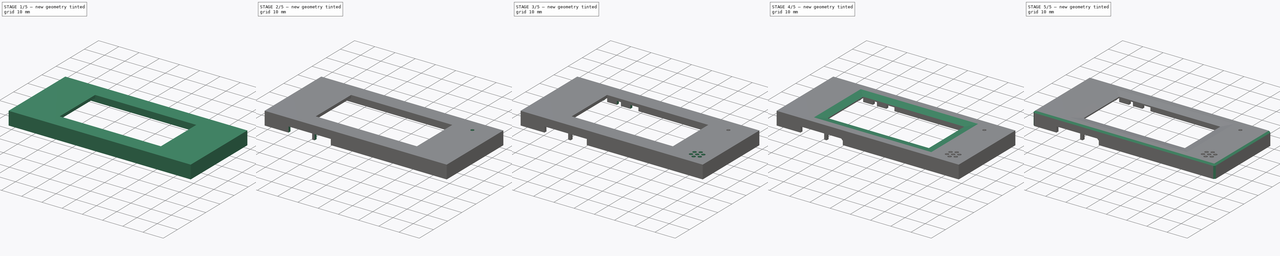
[diagram: build sequence overview — one tinted view per stage of 5, left to right]
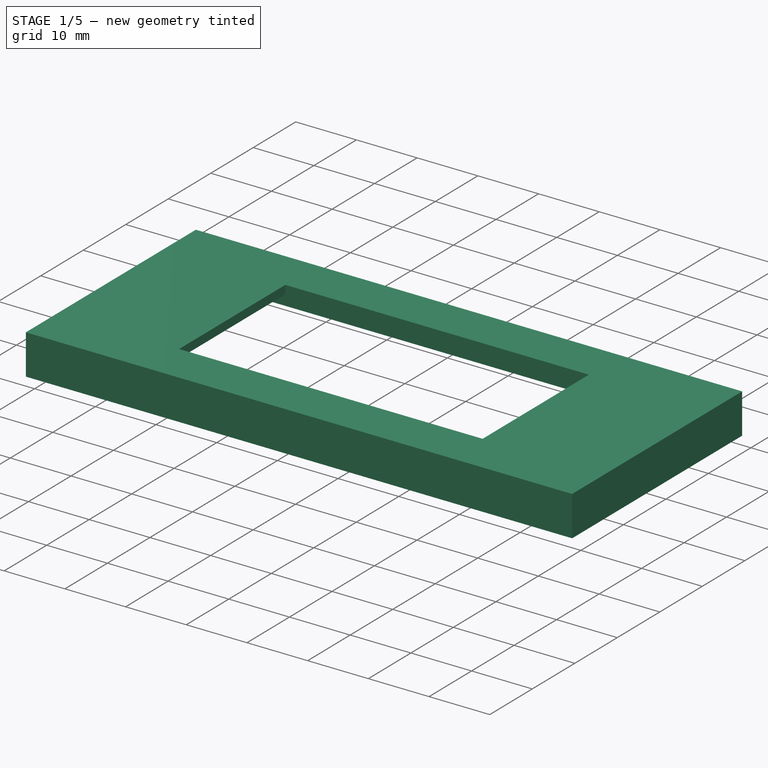
[diagram: stage 1 of 5 — iso view after this stage's code; geometry added in this stage tinted green]
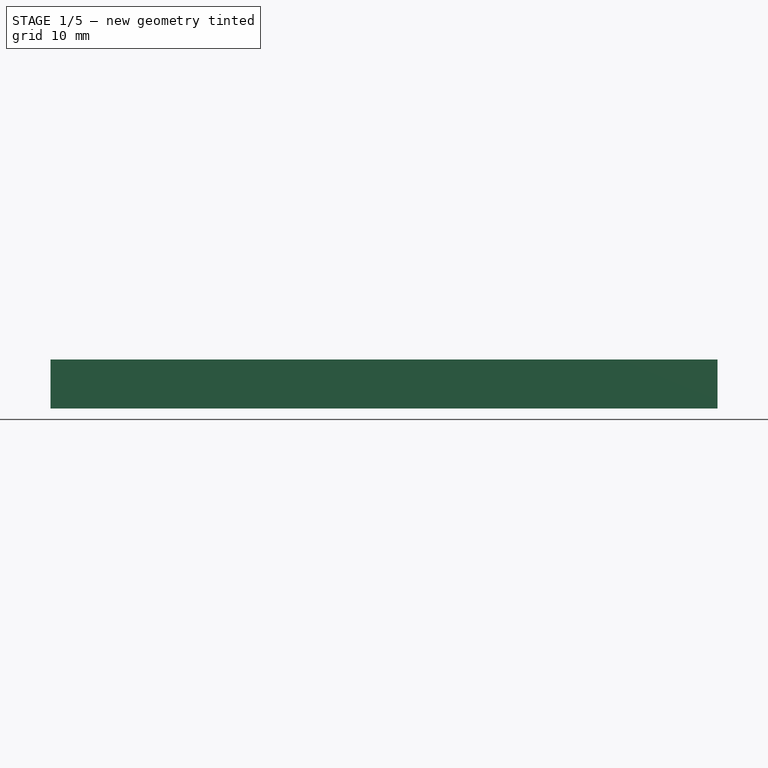
[diagram: stage 1 of 5 — front view after this stage's code; geometry added in this stage tinted green]
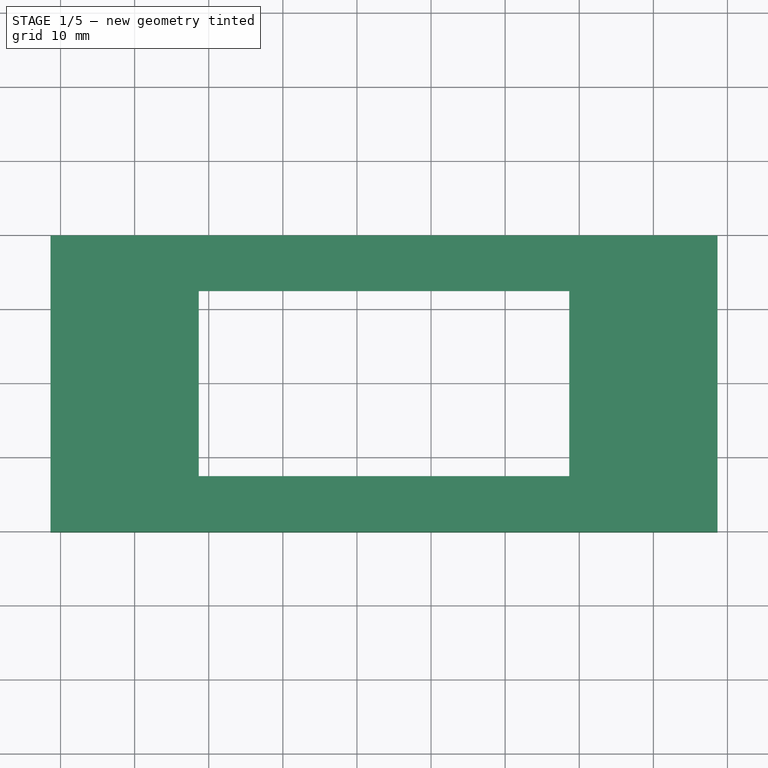
[diagram: stage 1 of 5 — top view after this stage's code; geometry added in this stage tinted green]
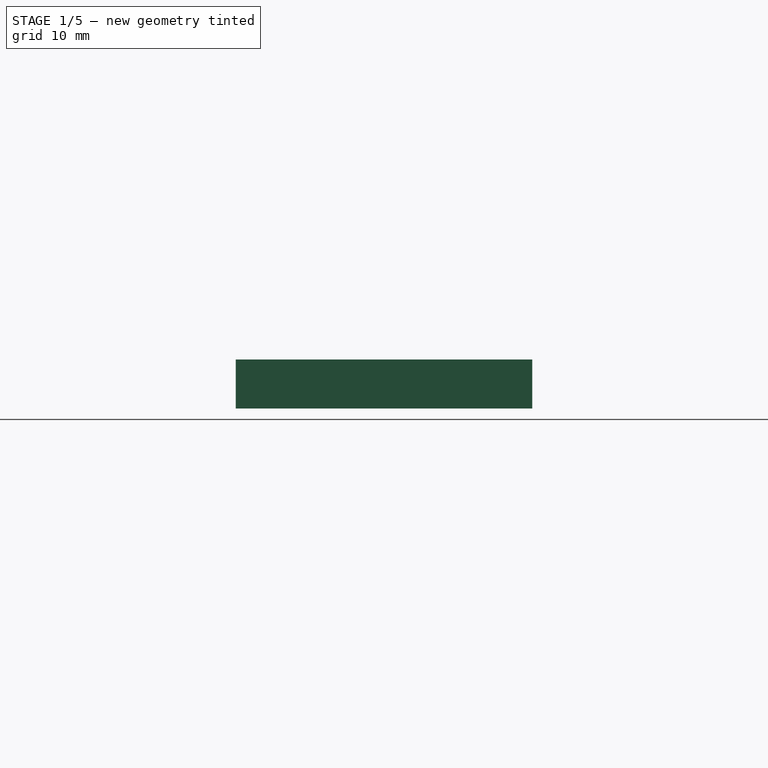
[diagram: stage 1 of 5 — right view after this stage's code; geometry added in this stage tinted green]
FCSTD DOCUMENT  (FreeCAD 0.21R33771 (Git))
Label: EnclosureBase
License: Creative Commons Attribution-NonCommercial 4.0
LicenseURL: https://creativecommons.org/licenses/by-nc/4.0/
objects: Sketcher::SketchObject×11, PartDesign::Pocket×8, PartDesign::Chamfer×4, PartDesign::Pad×3, PartDesign::SubShapeBinder×2, App::Link×1, Spreadsheet::Sheet×1, PartDesign::Fillet×1, PartDesign::Body×1
note: 46 computed .brp shape members not serialized (recipe doc carries the construction recipe); baked Part::Feature solids carry a one-line shape summary decoded from their .brp
EXTERNAL_REF file=Mainboard.FCStd obj=Body

FEATURE [App::Link] Link
  LinkPlacement = pos=(0,0,2.75) rot=(0,0,1;0rad)
  LinkedObject = -> <external Mainboard.FCStd>#Body
  Placement = pos=(0,0,2.75) rot=(0,0,1;0rad)
FEATURE [PartDesign::SubShapeBinder] Binder
  BindCopyOnChange = 0
  BindMode = 0
  ClaimChildren = false
  Context = -> Body [Binder.]
  Fuse = false
  MakeFace = true
  OffsetFill = false
  OffsetIntersection = false
  OffsetJoinType = 0
  OffsetOpenResult = false
  PartialLoad = false
  Relative = true
  Support = -> [Link[Pad013.Face5]]
  _Version = 2
FEATURE [Sketcher::SketchObject] Sketch  label="ShellOutline"
  ExternalGeometry = -> [Binder]
  FullyConstrained = true
  MapMode = 5
  Support = -> [XY_Plane]
  expr: Constraints[14] = <<Dims>>.CaseTotalW
  expr: Constraints[15] = <<Dims>>.CaseTotalH
  expr: Constraints[32] = <<Dims>>.ScreenVisibleWidth
  expr: Constraints[33] = <<Dims>>.ScreenVisibleHeight
  sketch-geometry (18):
    g0: LineSegment StartX=-41.35 StartY=19.875 StartZ=0 EndX=48.65 EndY=19.875 EndZ=0
    g1: LineSegment StartX=48.65 StartY=19.875 StartZ=0 EndX=48.65 EndY=-20.125 EndZ=0
    g2: LineSegment StartX=48.65 StartY=-20.125 StartZ=0 EndX=-41.35 EndY=-20.125 EndZ=0
    g3: LineSegment StartX=-41.35 StartY=-20.125 StartZ=0 EndX=-41.35 EndY=19.875 EndZ=0
    g4: LineSegment StartX=-28.35 StartY=19.875 StartZ=0 EndX=-28.35 EndY=14.375 EndZ=0
    g5: LineSegment StartX=-28.35 StartY=-14.625 StartZ=0 EndX=-28.35 EndY=-20.125 EndZ=0
    g6: LineSegment StartX=-28.35 StartY=14.375 StartZ=0 EndX=30.65 EndY=14.375 EndZ=0
    g7: LineSegment StartX=30.65 StartY=14.375 StartZ=0 EndX=30.65 EndY=-14.625 EndZ=0
    g8: LineSegment StartX=30.65 StartY=-14.625 StartZ=0 EndX=-28.35 EndY=-14.625 EndZ=0
    g9: LineSegment StartX=-28.35 StartY=-14.625 StartZ=0 EndX=-28.35 EndY=14.375 EndZ=0
    g10: LineSegment StartX=28.65 StartY=12.375 StartZ=0 EndX=-21.35 EndY=12.375 EndZ=0
    g11: LineSegment StartX=-21.35 StartY=12.375 StartZ=0 EndX=-21.35 EndY=-12.625 EndZ=0
    g12: LineSegment StartX=-21.35 StartY=-12.625 StartZ=0 EndX=28.65 EndY=-12.625 EndZ=0
    g13: LineSegment StartX=28.65 StartY=-12.625 StartZ=0 EndX=28.65 EndY=12.375 EndZ=0
    g14: LineSegment StartX=-21.35 StartY=12.375 StartZ=0 EndX=-21.35 EndY=14.375 EndZ=0
    g15: LineSegment StartX=-21.35 StartY=-12.625 StartZ=0 EndX=-21.35 EndY=-14.625 EndZ=0
    g16: LineSegment StartX=-21.35 StartY=-12.625 StartZ=0 EndX=-41.35 EndY=-12.625 EndZ=0
    g17: LineSegment StartX=28.65 StartY=-12.625 StartZ=0 EndX=48.65 EndY=-12.625 EndZ=0
  constraints (51):
    c: Coincident(g0,g1)
    c: Coincident(g1,g2)
    c: Coincident(g2,g3)
    c: Coincident(g3,g0)
    c: Horizontal(g0)
    c: Horizontal(g2)
    c: Vertical(g1)
    c: Vertical(g3)
    c: PointOnObject(g4,g0)
    c: Coincident(g4,g-3)
    c: Vertical(g4)
    c: PointOnObject(g5,g2)
    c: Vertical(g5)
    c: Equal(g4,g5)
    c: DistanceX(g0,g0) = 90
    c: DistanceY(g3,g3) = 40
    c: Coincident(g6,g7)
    c: Coincident(g7,g8)
    c: Coincident(g8,g9)
    c: Coincident(g9,g6)
    c: Horizontal(g6)
    c: Vertical(g7)
    c: Coincident(g6,g4)
    c: Coincident(g10,g11)
    c: Coincident(g11,g12)
    c: Coincident(g12,g13)
    c: Coincident(g13,g10)
    c: Horizontal(g10)
    c: Horizontal(g12)
    c: Vertical(g11)
    c: Vertical(g13)
    c: DistanceX(g10,g6) = 2
    c: DistanceX(g10,g10) = 50
    c: DistanceY(g13,g13) = 25
    c: Coincident(g14,g10)
    c: PointOnObject(g14,g6)
    c: Vertical(g14)
    c: Coincident(g15,g11)
    c: PointOnObject(g15,g8)
    c: Vertical(g15)
    c: Equal(g15,g14)
    c: Coincident(g16,g11)
    c: PointOnObject(g16,g3)
    c: Horizontal(g16)
    c: Coincident(g17,g12)
    c: PointOnObject(g17,g1)
    c: Horizontal(g17)
    c: Equal(g17,g16)
    c: Coincident(g7,g-5)
    c: Coincident(g5,g8)
    c: Coincident(g5,g-4)
FEATURE [Spreadsheet::Sheet] Spreadsheet  label="Dims"
  cells = A1='Name; B1='Value; C1='Computed; A2='WallThk; B2(WallThk)=1.4; A3='MainboardPcbThk; B3(MainboardPcbThk)=1.2; A4='ScreenDepth; B4(ScreenDepth)=1.2; A5='ScreenVisibleWidth; B5(ScreenVisibleWidth)=50; A6='ScreenVisibleHeight; B6(ScreenVisibleHeight)=25; A7='CaseTotalW; B7(CaseTotalW)=90; A8='CaseTotalH; B8(CaseTotalH)=40; A9='SdCardDepth; B9(SdCardDepth)=2.8; A10='FrontShellDepth; B10(FrontShellDepth)==WallThk + ScreenDepth + MainboardPcbThk + SdCardDepth; C10='*; A11='BatDepth; B11(BatDepth)=5; A12='BadLength; B12(BadLength)=50; A13='BatWidth; B13(BatWidth)=34; A14='BuzzerW; B14(BuzzerW)=5.2; A15='BuzzerH; B15(BuzzerH)=5.3; A16='BuzzerD; B16(BuzzerD)=1.2; A17='BuzzerHoleDia; B17(BuzzerHoleDia)=1.2; A18='BuzzerAssemblyH; B18(BuzzerAssemblyH)=11; A19='BuzzerAssemblyW; B19(BuzzerAssemblyW)=13; A20='BuzzerAssemblyD; B20(BuzzerAssemblyD)=7.5
FEATURE [PartDesign::Pad] Pad  label="Shell"
  Direction = (0,0,1)
  Length = 6.6
  Length2 = 10
  Profile = -> Sketch
  ReferenceAxis = -> Sketch [N_Axis]
  Type = 0
  expr: Length = <<Dims>>.FrontShellDepth
FEATURE [Sketcher::SketchObject] Sketch001  label="InnerCut"
  ExternalGeometry = -> [Pad]
  FullyConstrained = true
  MapMode = 5
  Placement = pos=(0,0,0) rot=(1,0,0;3.14159rad)
  Support = -> [Pad]
  expr: Constraints[10] = <<Dims>>.WallThk
  expr: Constraints[11] = <<Dims>>.WallThk
  expr: Constraints[17] = <<Dims>>.WallThk
  expr: Constraints[18] = <<Dims>>.BuzzerAssemblyH
  expr: Constraints[23] = <<Dims>>.BuzzerAssemblyW
  expr: Constraints[8] = <<Dims>>.WallThk
  expr: Constraints[9] = <<Dims>>.WallThk
  sketch-geometry (30):
    g0: LineSegment StartX=-39.95 StartY=18.725 StartZ=0 EndX=47.25 EndY=18.725 EndZ=0
    g1: LineSegment StartX=47.25 StartY=18.725 StartZ=0 EndX=47.25 EndY=-6.075 EndZ=0
    g2: LineSegment StartX=47.25 StartY=-18.475 StartZ=0 EndX=-39.95 EndY=-18.475 EndZ=0
    g3: LineSegment StartX=-39.95 StartY=-18.475 StartZ=0 EndX=-39.95 EndY=18.725 EndZ=0
    g4: LineSegment StartX=47.25 StartY=-6.075 StartZ=0 EndX=34.25 EndY=-6.075 EndZ=0
    g5: LineSegment StartX=34.25 StartY=-6.075 StartZ=0 EndX=34.25 EndY=-7.475 EndZ=0
    g6: LineSegment StartX=34.25 StartY=-7.475 StartZ=0 EndX=47.25 EndY=-7.475 EndZ=0
    g7: LineSegment StartX=47.25 StartY=-7.475 StartZ=0 EndX=47.25 EndY=-18.475 EndZ=0
    g8: LineSegment StartX=-39.95 StartY=18.725 StartZ=0 EndX=-36.85 EndY=18.725 EndZ=0
    g9: LineSegment StartX=-36.85 StartY=18.725 StartZ=0 EndX=-36.85 EndY=15.625 EndZ=0
    g10: LineSegment StartX=-36.85 StartY=15.625 StartZ=0 EndX=-39.95 EndY=15.625 EndZ=0
    g11: LineSegment StartX=-39.95 StartY=15.625 StartZ=0 EndX=-39.95 EndY=18.725 EndZ=0
    g12: LineSegment StartX=-39.95 StartY=-18.475 StartZ=0 EndX=-36.85 EndY=-18.475 EndZ=0
    g13: LineSegment StartX=-36.85 StartY=-18.475 StartZ=0 EndX=-36.85 EndY=-15.375 EndZ=0
    g14: LineSegment StartX=-36.85 StartY=-15.375 StartZ=0 EndX=-39.95 EndY=-15.375 EndZ=0
    g15: LineSegment StartX=-39.95 StartY=-15.375 StartZ=0 EndX=-39.95 EndY=-18.475 EndZ=0
    g16: LineSegment StartX=47.25 StartY=-18.475 StartZ=0 EndX=44.15 EndY=-18.475 EndZ=0
    g17: LineSegment StartX=44.15 StartY=-18.475 StartZ=0 EndX=44.15 EndY=-15.375 EndZ=0
    g18: LineSegment StartX=44.15 StartY=-15.375 StartZ=0 EndX=47.25 EndY=-15.375 EndZ=0
    g19: LineSegment StartX=47.25 StartY=-15.375 StartZ=0 EndX=47.25 EndY=-18.475 EndZ=0
    g20: LineSegment StartX=47.25 StartY=18.725 StartZ=0 EndX=44.15 EndY=18.725 EndZ=0
    g21: LineSegment StartX=44.15 StartY=18.725 StartZ=0 EndX=44.15 EndY=15.625 EndZ=0
    g22: LineSegment StartX=44.15 StartY=15.625 StartZ=0 EndX=47.25 EndY=15.625 EndZ=0
    g23: LineSegment StartX=47.25 StartY=15.625 StartZ=0 EndX=47.25 EndY=18.725 EndZ=0
    g24: LineSegment StartX=-39.95 StartY=15.625 StartZ=0 EndX=-39.95 EndY=-15.375 EndZ=0
    g25: LineSegment StartX=47.25 StartY=15.625 StartZ=0 EndX=47.25 EndY=-6.075 EndZ=0
    g26: LineSegment StartX=47.25 StartY=-7.475 StartZ=0 EndX=47.25 EndY=-15.375 EndZ=0
    g27: LineSegment StartX=-36.85 StartY=18.725 StartZ=0 EndX=44.15 EndY=18.725 EndZ=0
    g28: LineSegment StartX=-36.85 StartY=-18.475 StartZ=0 EndX=44.15 EndY=-18.475 EndZ=0
    g29: LineSegment StartX=-41.35 StartY=-19.875 StartZ=0 EndX=-36.85 EndY=-19.875 EndZ=0
  constraints (81):
    c: Coincident(g0,g1)
    c: Coincident(g7,g2)
    c: Coincident(g2,g3)
    c: Coincident(g3,g0)
    c: Horizontal(g0)
    c: Horizontal(g2)
    c: Vertical(g1)
    c: Vertical(g3)
    c: DistanceX(g-3,g0) = 1.4
    c: DistanceX(g0,g-6) = 1.4
    c: DistanceY(g0,g-6) = 1.4
    c: DistanceY(g-5,g7) = 1.4
    c: Coincident(g4,g5)
    c: Coincident(g5,g6)
    c: Horizontal(g4)
    c: Horizontal(g6)
    c: Vertical(g5)
    c: DistanceY(g5,g5) = 1.4
    c: DistanceY(g7,g7) = 11
    c: Coincident(g1,g4)
    c: Coincident(g6,g7)
    c: Vertical(g7)
    c: Equal(g0,g2)
    c: DistanceX(g4,g4) = 13
    c: Coincident(g8,g9)
    c: Coincident(g9,g10)
    c: Coincident(g10,g11)
    c: Coincident(g11,g8)
    c: Horizontal(g8)
    c: Horizontal(g10)
    c: Vertical(g9)
    c: Vertical(g11)
    c: Coincident(g8,g0)
    c: Coincident(g12,g13)
    c: Coincident(g13,g14)
    c: Coincident(g14,g15)
    c: Coincident(g15,g12)
    c: Horizontal(g12)
    c: Horizontal(g14)
    c: Vertical(g13)
    c: Vertical(g15)
    c: Coincident(g12,g2)
    c: Coincident(g16,g17)
    c: Coincident(g17,g18)
    c: Coincident(g18,g19)
    c: Coincident(g19,g16)
    c: Horizontal(g16)
    c: Horizontal(g18)
    c: Vertical(g17)
    c: Vertical(g19)
    c: Coincident(g16,g2)
    c: Coincident(g20,g21)
    c: Coincident(g21,g22)
    c: Coincident(g22,g23)
    c: Coincident(g23,g20)
    c: Horizontal(g20)
    c: Horizontal(g22)
    c: Vertical(g21)
    c: Vertical(g23)
    c: Coincident(g20,g0)
    c: Equal(g9,g10)
    c: Equal(g10,g14)
    c: Equal(g14,g13)
    c: Equal(g13,g17)
    c: Equal(g17,g18)
    c: Equal(g18,g22)
    c: Equal(g22,g21)
    c: Coincident(g24,g10)
    c: Coincident(g24,g14)
    c: Coincident(g25,g22)
    c: Coincident(g25,g4)
    c: Coincident(g26,g6)
    c: Coincident(g26,g18)
    c: Coincident(g27,g9)
    c: Coincident(g27,g21)
    c: Coincident(g28,g13)
    c: Coincident(g28,g17)
    c: Coincident(g29,g-4)
    c: Horizontal(g29)
    c: Vertical(g13,g29)
    c: DistanceX(g29,g29) = 4.5
FEATURE [PartDesign::Pocket] Pocket  label="ShellCutout"
  BaseFeature = -> Pad
  Direction = (0,0,1)
  Length = 4
  Length2 = 5
  Profile = -> Sketch001
  ReferenceAxis = -> Sketch001 [N_Axis]
  Type = 0
  expr: Length = <<Dims>>.MainboardPcbThk + <<Dims>>.SdCardDepth
FEATURE [Sketcher::SketchObject] Sketch002  label="MainboardCutout"
  ExternalGeometry = -> [Binder]
  FullyConstrained = true
  MapMode = 5
  Placement = pos=(0,0,4) rot=(1,0,0;3.14159rad)
  Support = -> [Pocket]
  sketch-geometry (21):
    g0: LineSegment StartX=-6.85 StartY=17.375 StartZ=0 EndX=25.65 EndY=17.375 EndZ=0
    g1: LineSegment StartX=25.65 StartY=17.375 StartZ=0 EndX=25.65 EndY=14.725 EndZ=0
    g2: LineSegment StartX=-6.85 StartY=14.725 StartZ=0 EndX=-6.85 EndY=17.375 EndZ=0
    g3: LineSegment StartX=-6.85 StartY=-15.375 StartZ=0 EndX=25.65 EndY=-15.375 EndZ=0
    g4: LineSegment StartX=25.65 StartY=-15.375 StartZ=0 EndX=25.65 EndY=-17.875 EndZ=0
    g5: LineSegment StartX=25.65 StartY=-17.875 StartZ=0 EndX=-6.85 EndY=-17.875 EndZ=0
    g6: LineSegment StartX=-6.85 StartY=-17.875 StartZ=0 EndX=-6.85 EndY=-15.375 EndZ=0
    g7: LineSegment StartX=-35.85 StartY=14.725 StartZ=0 EndX=-16.35 EndY=14.725 EndZ=0
    g8: LineSegment StartX=30.85 StartY=14.725 StartZ=0 EndX=30.85 EndY=-14.475 EndZ=0
    g9: LineSegment StartX=30.85 StartY=-14.475 StartZ=0 EndX=-8.35 EndY=-14.475 EndZ=0
    g10: LineSegment StartX=-35.85 StartY=-14.475 StartZ=0 EndX=-35.85 EndY=14.725 EndZ=0
    g11: LineSegment StartX=-8.35 StartY=17.275 StartZ=0 EndX=-16.35 EndY=17.275 EndZ=0
    g12: LineSegment StartX=-16.35 StartY=17.275 StartZ=0 EndX=-16.35 EndY=14.725 EndZ=0
    g13: LineSegment StartX=-8.35 StartY=14.725 StartZ=0 EndX=-8.35 EndY=17.275 EndZ=0
    g14: LineSegment StartX=-8.35 StartY=14.725 StartZ=0 EndX=-6.85 EndY=14.725 EndZ=0
    g15: LineSegment StartX=25.65 StartY=14.725 StartZ=0 EndX=30.85 EndY=14.725 EndZ=0
    g16: LineSegment StartX=-16.35 StartY=-14.475 StartZ=0 EndX=-16.35 EndY=-17.875 EndZ=0
    g17: LineSegment StartX=-16.35 StartY=-17.875 StartZ=0 EndX=-8.35 EndY=-17.875 EndZ=0
    g18: LineSegment StartX=-8.35 StartY=-17.875 StartZ=0 EndX=-8.35 EndY=-14.475 EndZ=0
    g19: LineSegment StartX=-8.35 StartY=-17.875 StartZ=0 EndX=-6.85 EndY=-17.875 EndZ=0
    g20: LineSegment StartX=-16.35 StartY=-14.475 StartZ=0 EndX=-35.85 EndY=-14.475 EndZ=0
  constraints (59):
    c: Coincident(g0,g1)
    c: Coincident(g2,g0)
    c: Horizontal(g0)
    c: Vertical(g1)
    c: Vertical(g2)
    c: Coincident(g0,g-11)
    c: Coincident(g3,g4)
    c: Coincident(g4,g5)
    c: Coincident(g5,g6)
    c: Coincident(g6,g3)
    c: Horizontal(g3)
    c: Horizontal(g5)
    c: Vertical(g4)
    c: Vertical(g6)
    c: Coincident(g3,g-9)
    c: Coincident(g4,g-10)
    c: Coincident(g15,g8)
    c: Coincident(g8,g9)
    c: Coincident(g20,g10)
    c: Coincident(g10,g7)
    c: Horizontal(g7)
    c: Horizontal(g9)
    c: Vertical(g8)
    c: Vertical(g10)
    c: DistanceY(g20,g-6) = 0.1
    c: DistanceX(g7,g-3) = 0.2
    c: DistanceX(g-7,g8) = 0.2
    c: Coincident(g11,g12)
    c: Coincident(g13,g11)
    c: Horizontal(g11)
    c: Vertical(g12)
    c: Vertical(g13)
    c: DistanceX(g11,g0) = 1.5
    c: DistanceX(g11,g11) = 8
    c: DistanceY(g11,g0) = 0.1
    c: DistanceY(g-4,g7) = 0.1
    c: Vertical(g-12,g1)
    c: PointOnObject(g1,g7)
    c: Coincident(g1,g15)
    c: Horizontal(g15)
    c: Coincident(g2,g14)
    c: Horizontal(g7,g13)
    c: Horizontal(g13,g2)
    c: Coincident(g7,g12)
    c: Coincident(g13,g14)
    c: Coincident(g16,g17)
    c: Coincident(g17,g18)
    c: Horizontal(g17)
    c: Vertical(g16)
    c: Vertical(g18)
    c: Equal(g11,g17)
    c: Horizontal(g17,g5)
    c: Coincident(g19,g17)
    c: Coincident(g19,g5)
    c: Equal(g19,g14)
    c: Coincident(g16,g20)
    c: Coincident(g9,g18)
    c: Horizontal(g20)
    c: Horizontal(g16,g9)
FEATURE [PartDesign::Pocket] Pocket001  label="MainboardCut"
  BaseFeature = -> Pocket
  Direction = (0,0,1)
  Length = 1.2
  Length2 = 5
  Profile = -> Sketch002
  ReferenceAxis = -> Sketch002 [N_Axis]
  Type = 0
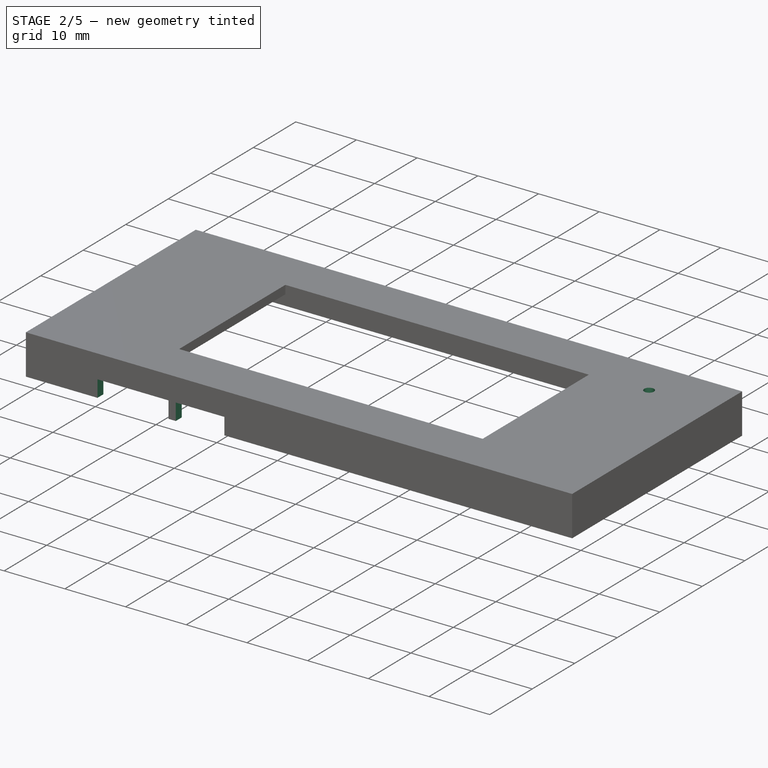
[diagram: stage 2 of 5 — iso view after this stage's code; geometry added in this stage tinted green]
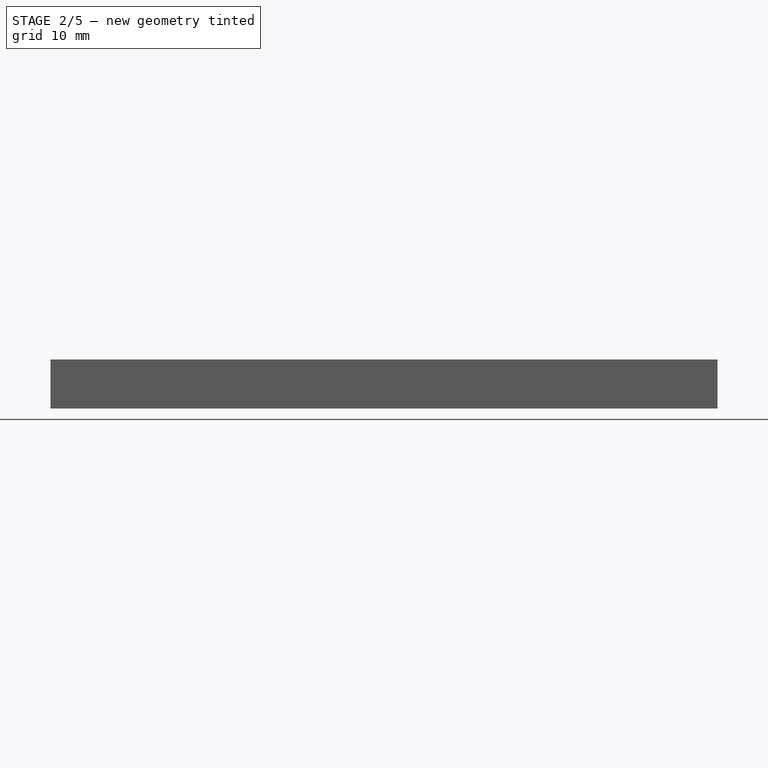
[diagram: stage 2 of 5 — front view after this stage's code; geometry added in this stage tinted green]
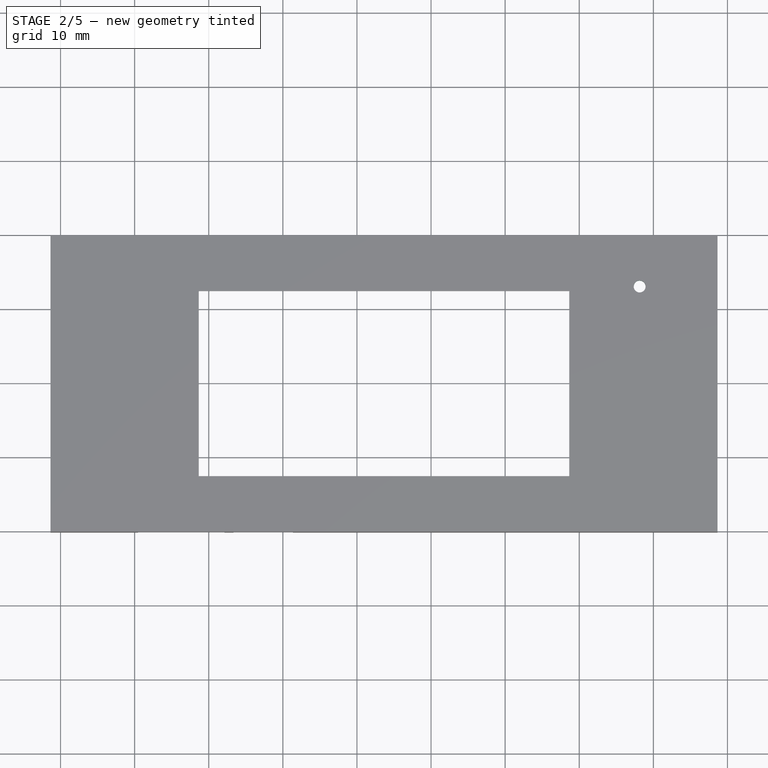
[diagram: stage 2 of 5 — top view after this stage's code; geometry added in this stage tinted green]
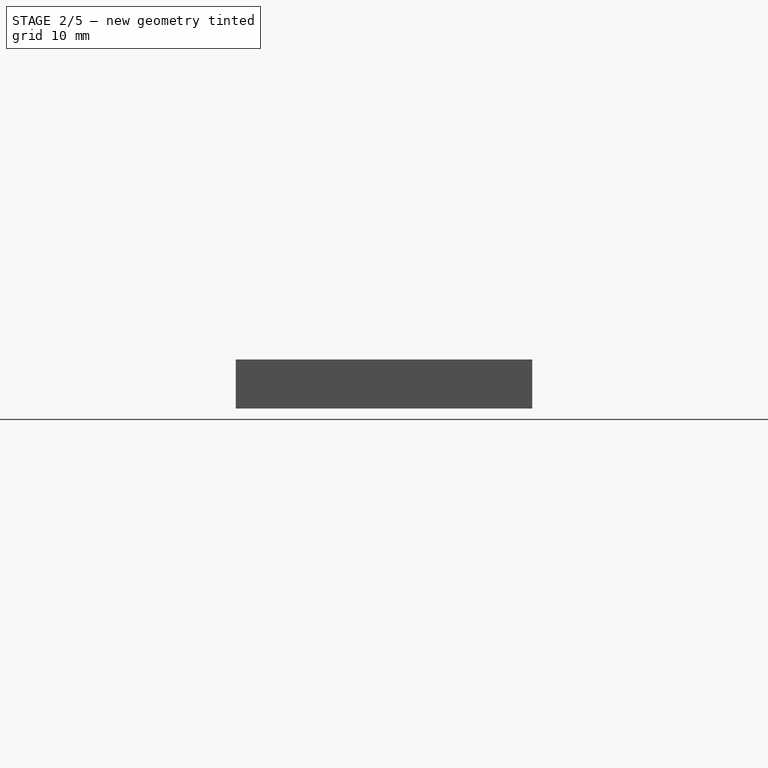
[diagram: stage 2 of 5 — right view after this stage's code; geometry added in this stage tinted green]
FEATURE [Sketcher::SketchObject] Sketch004  label="BuzzerSlot"
  ExternalGeometry = -> [Pocket001]
  FullyConstrained = true
  MapMode = 5
  Placement = pos=(0,0,4) rot=(1,0,0;3.14159rad)
  Support = -> [Pocket001]
  expr: Constraints[8] = <<Dims>>.BuzzerH
  expr: Constraints[9] = <<Dims>>.BuzzerW
  sketch-geometry (6):
    g0: LineSegment StartX=35.55 StartY=-10.325 StartZ=0 EndX=40.75 EndY=-10.325 EndZ=0
    g1: LineSegment StartX=40.75 StartY=-10.325 StartZ=0 EndX=40.75 EndY=-15.625 EndZ=0
    g2: LineSegment StartX=40.75 StartY=-15.625 StartZ=0 EndX=35.55 EndY=-15.625 EndZ=0
    g3: LineSegment StartX=35.55 StartY=-15.625 StartZ=0 EndX=35.55 EndY=-10.325 EndZ=0
    g4: LineSegment StartX=34.25 StartY=-7.475 StartZ=0 EndX=34.25 EndY=-10.325 EndZ=0
    g5: LineSegment StartX=35.55 StartY=-15.625 StartZ=0 EndX=35.55 EndY=-18.475 EndZ=0
  constraints (18):
    c: Coincident(g0,g1)
    c: Coincident(g1,g2)
    c: Coincident(g2,g3)
    c: Coincident(g3,g0)
    c: Horizontal(g0)
    c: Horizontal(g2)
    c: Vertical(g1)
    c: Vertical(g3)
    c: DistanceY(g1,g1) = 5.3
    c: DistanceX(g0,g0) = 5.2
    c: DistanceX(g1,g-3) = 3.4
    c: Coincident(g4,g-4)
    c: Vertical(g4)
    c: Coincident(g5,g2)
    c: Vertical(g5)
    c: Horizontal(g5,g-3)
    c: Horizontal(g4,g0)
    c: Equal(g4,g5)
FEATURE [PartDesign::Pocket] Pocket002  label="BuzzerSlot001"
  BaseFeature = -> Pocket001
  Direction = (0,0,1)
  Length = 1.2
  Length2 = 5
  Profile = -> Sketch004
  ReferenceAxis = -> Sketch004 [N_Axis]
  Type = 0
  expr: Length = <<Dims>>.BuzzerD
FEATURE [Sketcher::SketchObject] Sketch005
  ExternalGeometry = -> [Sketch004]
  FullyConstrained = true
  MapMode = 5
  Placement = pos=(0,0,5.2) rot=(1,0,0;3.14159rad)
  Support = -> [Pocket002]
  sketch-geometry (1):
    g0: Circle CenterX=38.15 CenterY=-12.975 CenterZ=0 NormalX=0 NormalY=0 NormalZ=1 AngleXU=0 Radius=0.8
  constraints (2):
    c: Diameter(g0) = 1.6
    c: Symmetric(g-3,g-4,g0)
FEATURE [PartDesign::Pocket] Pocket003  label="BuzzerHole"
  BaseFeature = -> Pocket002
  Direction = (0,0,1)
  Length = 5
  Length2 = 5
  Profile = -> Sketch005
  ReferenceAxis = -> Sketch005 [N_Axis]
  Type = 1
FEATURE [PartDesign::SubShapeBinder] Binder001
  BindCopyOnChange = 0
  BindMode = 0
  ClaimChildren = false
  Context = -> Body [Binder001.]
  Fuse = false
  MakeFace = true
  OffsetFill = false
  OffsetIntersection = false
  OffsetJoinType = 0
  OffsetOpenResult = false
  PartialLoad = false
  Relative = true
  Support = -> [Link[Pad013.Face114,Pad013.Face115,Pad013.Face80,Pad013.Face84,Pad013.Face98,Pad013.Face96]]
  _Version = 2
FEATURE [Sketcher::SketchObject] Sketch006
  ExternalGeometry = -> [Pocket003,Binder001]
  FullyConstrained = true
  MapMode = 5
  Placement = pos=(0,-20.125,0) rot=(1,0,0;1.5708rad)
  Support = -> [Pocket003]
  sketch-geometry (8):
    g0: LineSegment StartX=-29.55 StartY=2.75 StartZ=0 EndX=-17.85 EndY=2.75 EndZ=0
    g1: LineSegment StartX=-16.65 StartY=2.75 StartZ=0 EndX=-8.65 EndY=2.75 EndZ=0
    g2: LineSegment StartX=-29.55 StartY=2.75 StartZ=0 EndX=-29.55 EndY=0 EndZ=0
    g3: LineSegment StartX=-17.85 StartY=2.75 StartZ=0 EndX=-17.85 EndY=0 EndZ=0
    g4: LineSegment StartX=-16.65 StartY=2.75 StartZ=0 EndX=-16.65 EndY=0 EndZ=0
    g5: LineSegment StartX=-8.65 StartY=2.75 StartZ=0 EndX=-8.65 EndY=0 EndZ=0
    g6: LineSegment StartX=-29.55 StartY=0 StartZ=0 EndX=-17.85 EndY=0 EndZ=0
    g7: LineSegment StartX=-16.65 StartY=0 StartZ=0 EndX=-8.65 EndY=0 EndZ=0
  constraints (20):
    c: Coincident(g2,g0)
    c: Vertical(g2)
    c: Coincident(g3,g0)
    c: Vertical(g3)
    c: Coincident(g4,g1)
    c: Vertical(g4)
    c: Coincident(g5,g1)
    c: Vertical(g5)
    c: PointOnObject(g2,g-1)
    c: PointOnObject(g3,g-1)
    c: PointOnObject(g4,g-1)
    c: PointOnObject(g5,g-1)
    c: Coincident(g6,g2)
    c: Coincident(g6,g3)
    c: Coincident(g7,g4)
    c: Coincident(g7,g5)
    c: Coincident(g0,g-6)
    c: Coincident(g0,g-7)
    c: Coincident(g1,g-8)
    c: Coincident(g1,g-9)
FEATURE [PartDesign::Pocket] Pocket004  label="UsbAndTfCutout"
  BaseFeature = -> Pocket003
  Direction = (0,1,-2e-16)
  Length = 0
  Length2 = 5
  Profile = -> Sketch006
  ReferenceAxis = -> Sketch006 [N_Axis]
  Type = 3
  UpToFace = -> Pocket003 [Face13]
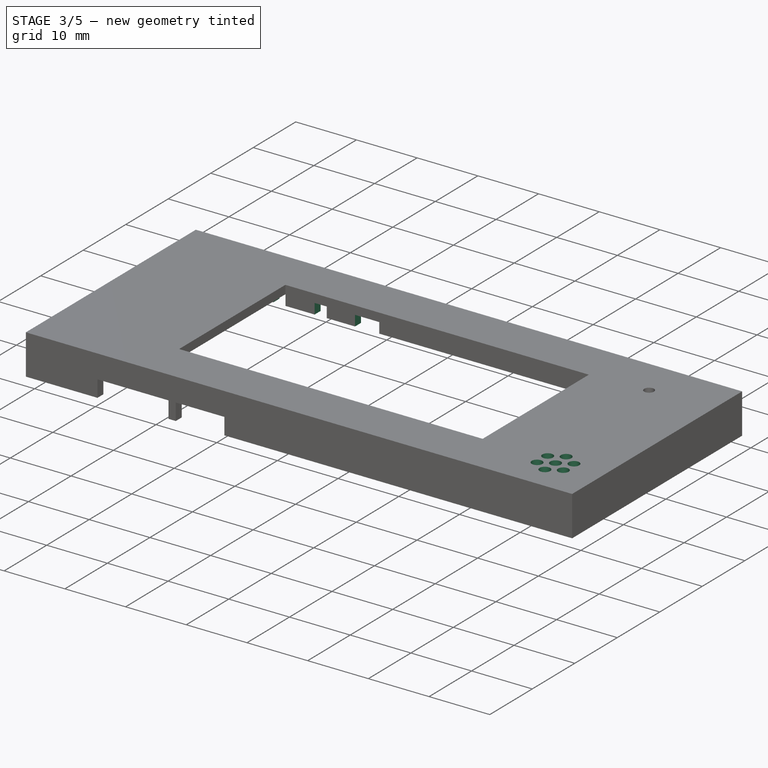
[diagram: stage 3 of 5 — iso view after this stage's code; geometry added in this stage tinted green]
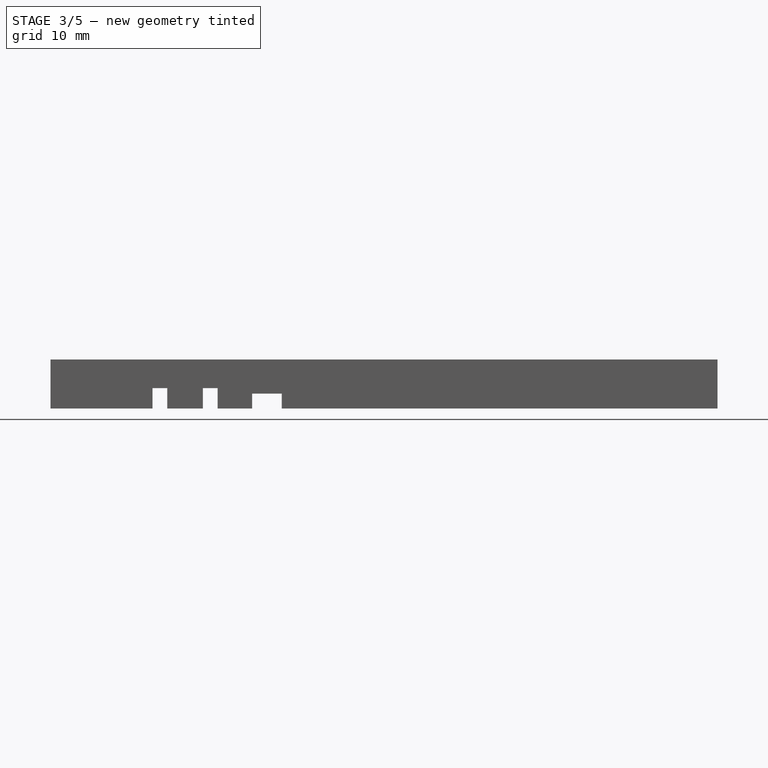
[diagram: stage 3 of 5 — front view after this stage's code; geometry added in this stage tinted green]
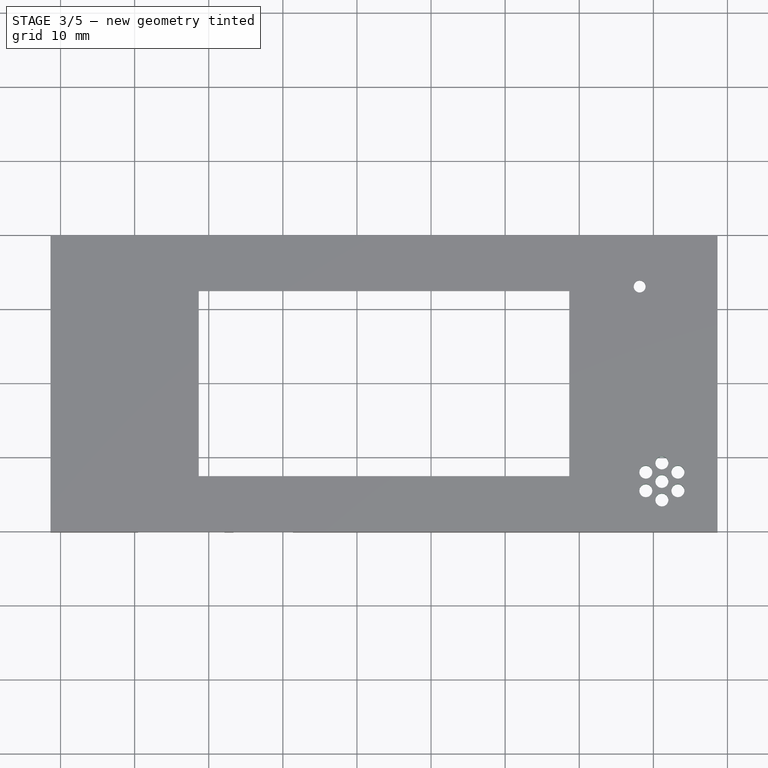
[diagram: stage 3 of 5 — top view after this stage's code; geometry added in this stage tinted green]
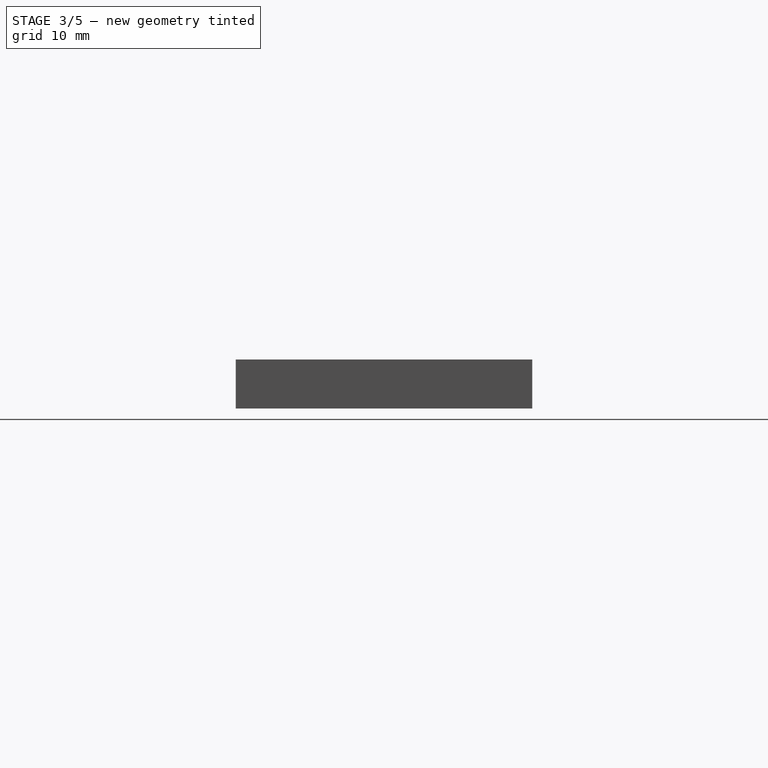
[diagram: stage 3 of 5 — right view after this stage's code; geometry added in this stage tinted green]
FEATURE [Sketcher::SketchObject] Sketch008
  ExternalGeometry = -> [Binder001,Pocket004]
  FullyConstrained = true
  MapMode = 5
  Placement = pos=(0,19.875,0) rot=(0,0.707107,0.707107;3.14159rad)
  Support = -> [Pocket004]
  sketch-geometry (12):
    g0: LineSegment StartX=14.15 StartY=-0.25 StartZ=0 EndX=10.15 EndY=-0.25 EndZ=0
    g1: LineSegment StartX=10.15 StartY=-0.25 StartZ=0 EndX=10.15 EndY=2 EndZ=0
    g2: LineSegment StartX=10.15 StartY=2 StartZ=0 EndX=14.15 EndY=2 EndZ=0
    g3: LineSegment StartX=14.15 StartY=2 StartZ=0 EndX=14.15 EndY=-0.25 EndZ=0
    g4: LineSegment StartX=27.6 StartY=-0.25 StartZ=0 EndX=25.6 EndY=-0.25 EndZ=0
    g5: LineSegment StartX=25.6 StartY=-0.25 StartZ=0 EndX=25.6 EndY=2.75 EndZ=0
    g6: LineSegment StartX=25.6 StartY=2.75 StartZ=0 EndX=27.6 EndY=2.75 EndZ=0
    g7: LineSegment StartX=27.6 StartY=2.75 StartZ=0 EndX=27.6 EndY=-0.25 EndZ=0
    g8: LineSegment StartX=20.8 StartY=-0.25 StartZ=0 EndX=18.8 EndY=-0.25 EndZ=0
    g9: LineSegment StartX=18.8 StartY=-0.25 StartZ=0 EndX=18.8 EndY=2.75 EndZ=0
    g10: LineSegment StartX=18.8 StartY=2.75 StartZ=0 EndX=20.8 EndY=2.75 EndZ=0
    g11: LineSegment StartX=20.8 StartY=2.75 StartZ=0 EndX=20.8 EndY=-0.25 EndZ=0
  constraints (30):
    c: Coincident(g0,g1)
    c: Coincident(g1,g2)
    c: Horizontal(g0)
    c: Vertical(g1)
    c: Coincident(g1,g-6)
    c: Coincident(g4,g5)
    c: Coincident(g5,g6)
    c: Horizontal(g4)
    c: Vertical(g5)
    c: Coincident(g8,g9)
    c: Coincident(g9,g10)
    c: Horizontal(g8)
    c: Vertical(g9)
    c: Coincident(g5,g-3)
    c: Coincident(g9,g-4)
    c: Coincident(g0,g3)
    c: Vertical(g3)
    c: Coincident(g8,g11)
    c: Coincident(g4,g7)
    c: Vertical(g11)
    c: Vertical(g7)
    c: Coincident(g2,g3)
    c: Coincident(g2,g-5)
    c: Coincident(g10,g11)
    c: Coincident(g10,g-4)
    c: Coincident(g6,g7)
    c: Coincident(g6,g-3)
    c: Horizontal(g0,g8)
    c: Horizontal(g8,g4)
    c: Horizontal(g0,g-8)
FEATURE [PartDesign::Pocket] Pocket005  label="SwitchAndButtonsCutout"
  BaseFeature = -> Pocket004
  Direction = (0,-1,2e-16)
  Length = 0
  Length2 = 5
  Profile = -> Sketch008
  ReferenceAxis = -> Sketch008 [N_Axis]
  Type = 3
  UpToFace = -> Pocket004 [Face14]
FEATURE [Sketcher::SketchObject] Sketch009
  ExternalGeometry = -> [Pocket005]
  FullyConstrained = true
  MapMode = 5
  Placement = pos=(0,0,4) rot=(1,0,0;3.14159rad)
  Support = -> [Pocket005]
  sketch-geometry (5):
    g0: Circle CenterX=41.15 CenterY=18.375 CenterZ=0 NormalX=0 NormalY=0 NormalZ=1 AngleXU=0 Radius=1
    g1: Circle CenterX=41.15 CenterY=8.275 CenterZ=0 NormalX=0 NormalY=0 NormalZ=1 AngleXU=0 Radius=1
    g2: Circle CenterX=41.15 CenterY=-5.725 CenterZ=0 NormalX=0 NormalY=0 NormalZ=1 AngleXU=0 Radius=1
    g3: LineSegment StartX=41.15 StartY=-5.725 StartZ=0 EndX=41.15 EndY=-6.075 EndZ=0
    g4: LineSegment StartX=41.15 StartY=18.375 StartZ=0 EndX=41.15 EndY=18.725 EndZ=0
  constraints (15):
    c: Vertical(g0,g1)
    c: Equal(g0,g1)
    c: Diameter(g0) = 2
    c: DistanceY(g1,g0) = 10.1
    c: Equal(g1,g2)
    c: Vertical(g1,g2)
    c: DistanceY(g2,g1) = 14
    c: DistanceX(g2,g-4) = 7.5
    c: Coincident(g3,g2)
    c: PointOnObject(g3,g-6)
    c: Coincident(g4,g0)
    c: PointOnObject(g4,g-5)
    c: Perpendicular(g-5,g4)
    c: Perpendicular(g-6,g3)
    c: Equal(g3,g4)
FEATURE [PartDesign::Pad] Pad002  label="SensorsStandoffs"
  BaseFeature = -> Pocket005
  Direction = (0,0,-1)
  Length = 1.8
  Length2 = 10
  Profile = -> Sketch009
  ReferenceAxis = -> Sketch009 [N_Axis]
  Type = 0
FEATURE [Sketcher::SketchObject] Sketch010
  ExternalGeometry = -> [Pad002]
  FullyConstrained = true
  MapMode = 5
  Placement = pos=(0,0,2.2) rot=(1,0,0;3.14159rad)
  Support = -> [Pad002]
  sketch-geometry (1):
    g0: Circle CenterX=41.15 CenterY=8.275 CenterZ=0 NormalX=0 NormalY=0 NormalZ=1 AngleXU=0 Radius=0.5
  constraints (2):
    c: Diameter(g0) = 1
    c: Coincident(g0,g-3)
FEATURE [PartDesign::Pad] Pad003  label="SensorStandoffSeparationPin"
  BaseFeature = -> Pad002
  Direction = (0,0,-1)
  Length = 0.4
  Length2 = 10
  Profile = -> Sketch010
  ReferenceAxis = -> Sketch010 [N_Axis]
  Type = 0
FEATURE [Sketcher::SketchObject] Sketch012
  ExternalGeometry = -> [Pad002]
  FullyConstrained = true
  MapMode = 5
  Placement = pos=(0,0,4) rot=(1,0,0;3.14159rad)
  Support = -> [Pad002]
  sketch-geometry (14):
    g0: LineSegment StartX=43.3151 StartY=12.075 StartZ=0 EndX=43.3151 EndY=14.575 EndZ=0
    g1: LineSegment StartX=43.3151 StartY=14.575 StartZ=0 EndX=41.15 EndY=15.825 EndZ=0
    g2: LineSegment StartX=41.15 StartY=15.825 StartZ=0 EndX=38.9849 EndY=14.575 EndZ=0
    g3: LineSegment StartX=38.9849 StartY=14.575 StartZ=0 EndX=38.9849 EndY=12.075 EndZ=0
    g4: LineSegment StartX=38.9849 StartY=12.075 StartZ=0 EndX=41.15 EndY=10.825 EndZ=0
    g5: LineSegment StartX=41.15 StartY=10.825 StartZ=0 EndX=43.3151 EndY=12.075 EndZ=0
    g6: Circle CenterX=41.15 CenterY=13.325 CenterZ=0 NormalX=0 NormalY=0 NormalZ=1 AngleXU=0 Radius=2.5
    g7: Circle CenterX=38.9849 CenterY=14.575 CenterZ=0 NormalX=0 NormalY=0 NormalZ=1 AngleXU=0 Radius=0.875
    g8: Circle CenterX=41.15 CenterY=15.825 CenterZ=0 NormalX=0 NormalY=0 NormalZ=1 AngleXU=0 Radius=0.875
    g9: Circle CenterX=43.3151 CenterY=14.575 CenterZ=0 NormalX=0 NormalY=0 NormalZ=1 AngleXU=0 Radius=0.875
    g10: Circle CenterX=43.3151 CenterY=12.075 CenterZ=0 NormalX=0 NormalY=0 NormalZ=1 AngleXU=0 Radius=0.875
    g11: Circle CenterX=41.15 CenterY=10.825 CenterZ=0 NormalX=0 NormalY=0 NormalZ=1 AngleXU=0 Radius=0.875
    g12: Circle CenterX=38.9849 CenterY=12.075 CenterZ=0 NormalX=0 NormalY=0 NormalZ=1 AngleXU=0 Radius=0.875
    g13: Circle CenterX=41.15 CenterY=13.325 CenterZ=0 NormalX=0 NormalY=0 NormalZ=1 AngleXU=0 Radius=0.875
  constraints (30):
    c: Coincident(g0,g1)
    c: Coincident(g1,g2)
    c: Coincident(g2,g3)
    c: Coincident(g3,g4)
    c: Coincident(g4,g5)
    c: Coincident(g5,g0)
    c: Equal(g0, g1-g5) x5
    c: PointOnObject(g0,g6)
    c: PointOnObject(g1,g6)
    c: PointOnObject(g2,g6)
    c: PointOnObject(g3,g6)
    c: PointOnObject(g4,g6)
    c: PointOnObject(g5,g6)
    c: Vertical(g1,g6)
    c: Distance(g2,g0) = 5
    c: Coincident(g7,g2)
    c: Coincident(g8,g1)
    c: Coincident(g9,g0)
    c: Coincident(g10,g0)
    c: Coincident(g11,g4)
    c: Coincident(g12,g3)
    c: Coincident(g13,g6)
    c: Equal(g12,g7)
    c: Equal(g7,g8)
    c: Equal(g8,g9)
    c: Equal(g9,g10)
    c: Equal(g10,g11)
    c: Equal(g11,g13)
    c: Diameter(g13) = 1.75
    c: Symmetric(g-6,g-5,g13)
FEATURE [PartDesign::Pocket] Pocket006  label="HumSensorHoles"
  BaseFeature = -> Pad003
  Direction = (0,0,1)
  Length = 5
  Length2 = 5
  Profile = -> Sketch012
  ReferenceAxis = -> Sketch012 [N_Axis]
  Type = 1
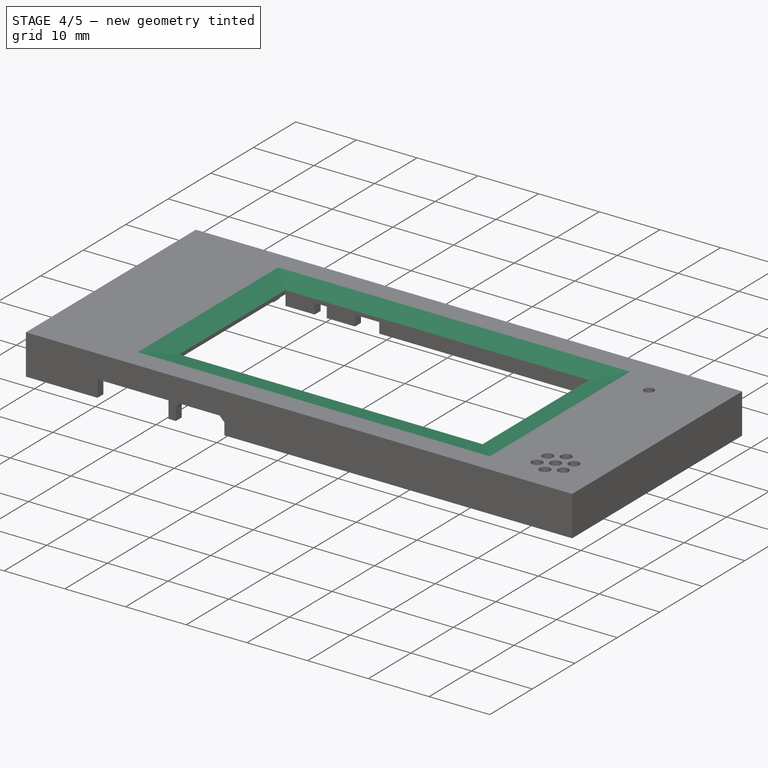
[diagram: stage 4 of 5 — iso view after this stage's code; geometry added in this stage tinted green]
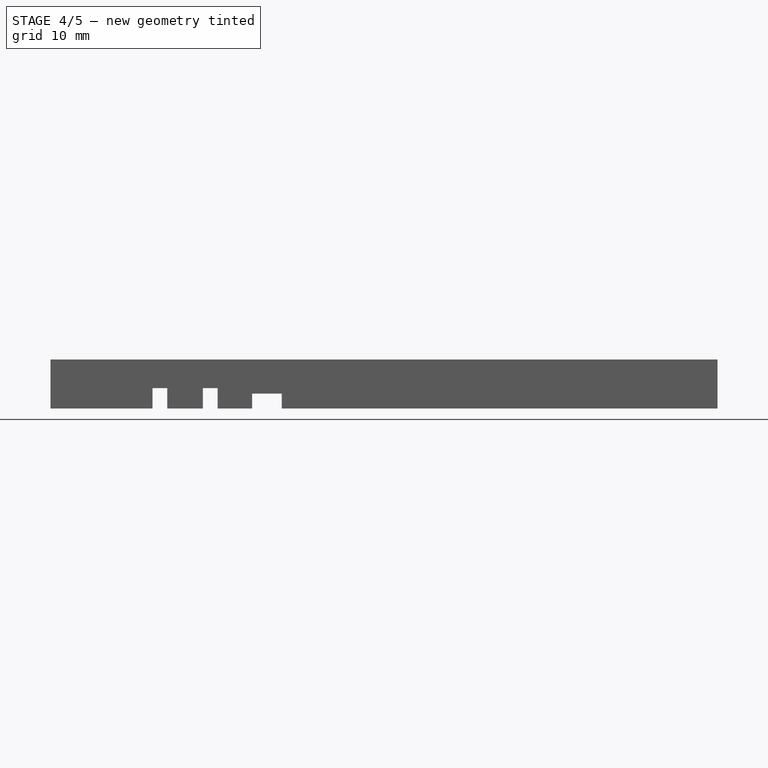
[diagram: stage 4 of 5 — front view after this stage's code; geometry added in this stage tinted green]
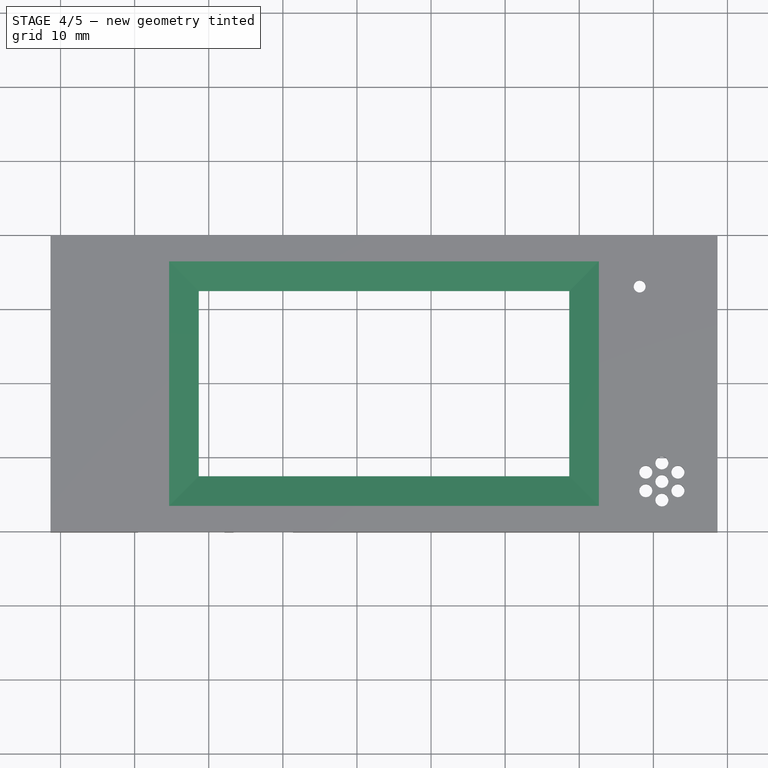
[diagram: stage 4 of 5 — top view after this stage's code; geometry added in this stage tinted green]
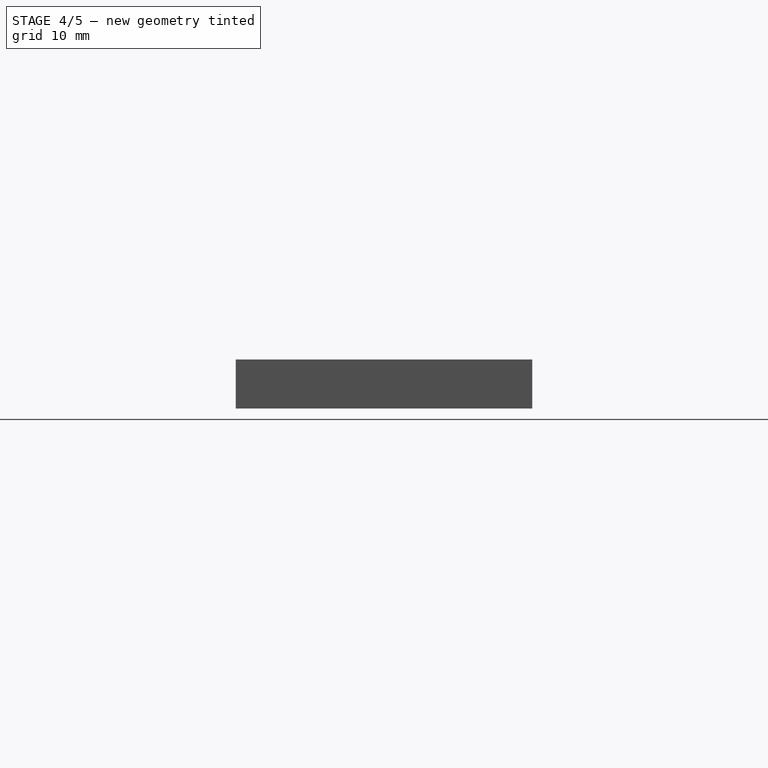
[diagram: stage 4 of 5 — right view after this stage's code; geometry added in this stage tinted green]
FEATURE [PartDesign::Chamfer] Chamfer  label="UsbChamfer"
  Angle = 45
  Base = -> Pocket006 [Edge115,Edge193]
  BaseFeature = -> Pocket006
  ChamferType = 0
  FlipDirection = false
  Size = 0.8
  Size2 = 1
  SupportTransform = false
  UseAllEdges = false
FEATURE [PartDesign::Chamfer] Chamfer001  label="ScreenChamfer"
  Angle = 45
  Base = -> Chamfer [Edge233,Edge234,Edge236,Edge235]
  BaseFeature = -> Chamfer
  ChamferType = 1
  FlipDirection = false
  Size = 4
  Size2 = 0.8
  SupportTransform = false
  UseAllEdges = false
FEATURE [PartDesign::Chamfer] Chamfer002  label="InnerCornerChamfers"
  Angle = 45
  Base = -> Chamfer001 [Edge226,Edge206,Edge225,Edge218,Edge213,Edge207,Edge209,Edge210,Edge212]
  BaseFeature = -> Chamfer001
  ChamferType = 0
  FlipDirection = false
  Size = 0.25
  Size2 = 1
  SupportTransform = false
  UseAllEdges = false
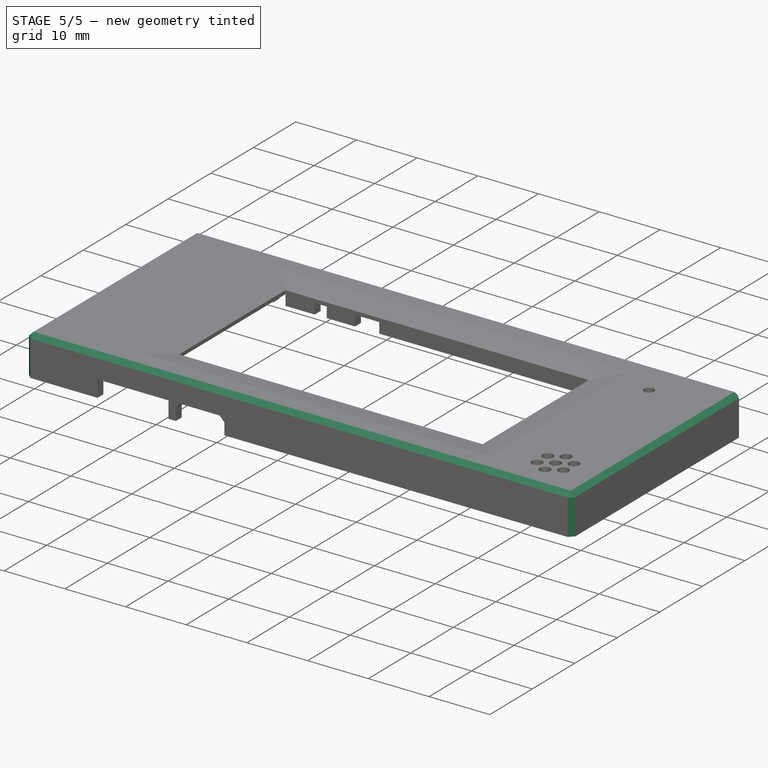
[diagram: stage 5 of 5 — iso view after this stage's code; geometry added in this stage tinted green]
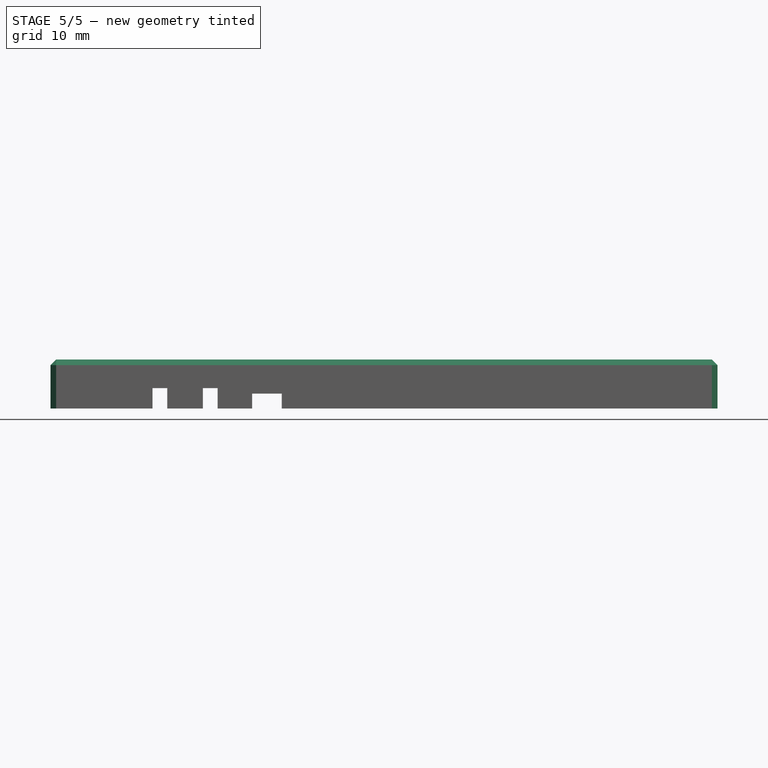
[diagram: stage 5 of 5 — front view after this stage's code; geometry added in this stage tinted green]
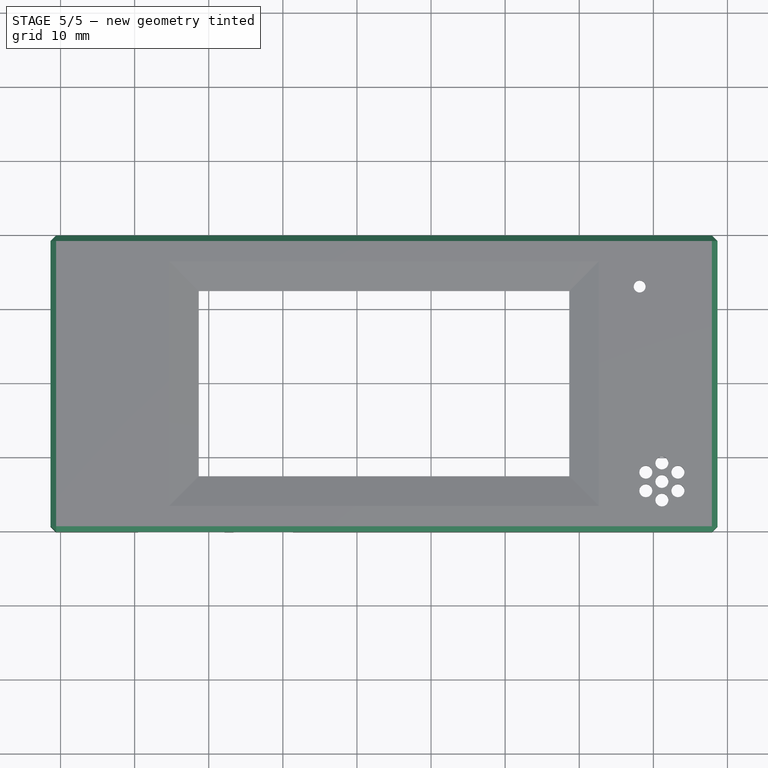
[diagram: stage 5 of 5 — top view after this stage's code; geometry added in this stage tinted green]
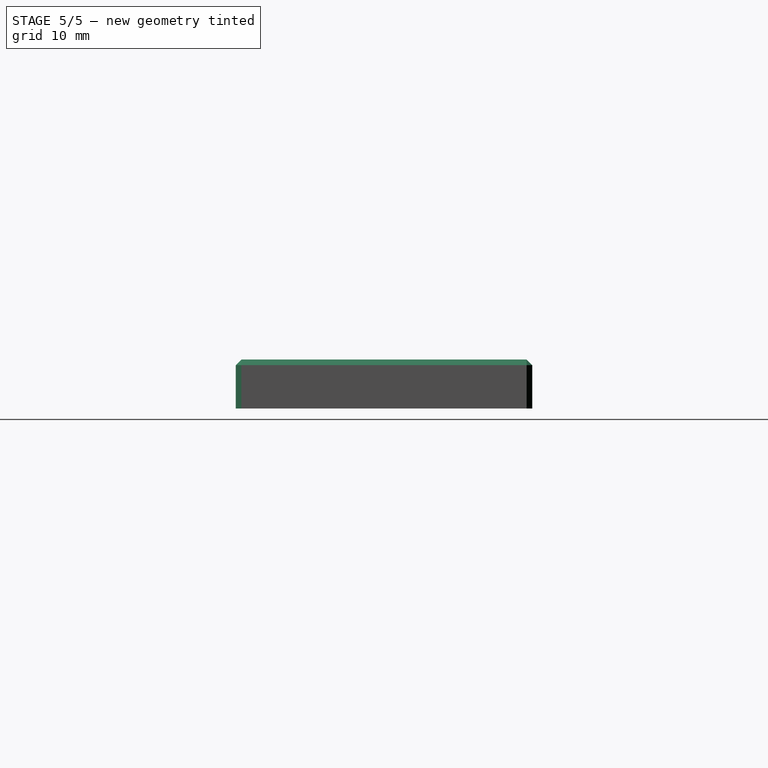
[diagram: stage 5 of 5 — right view after this stage's code; geometry added in this stage tinted green]
FEATURE [PartDesign::Fillet] Fillet  label="InnerNutStandChamfer"
  Base = -> Chamfer002 [Edge199,Edge92,Edge203,Edge36]
  BaseFeature = -> Chamfer002
  Radius = 1.5
  SupportTransform = false
  UseAllEdges = false
FEATURE [Sketcher::SketchObject] Sketch013
  ExternalGeometry = -> [Fillet]
  FullyConstrained = true
  MapMode = 5
  Support = -> [XY_Plane]
  sketch-geometry (16):
    g0: LineSegment StartX=-39.1 StartY=-17.875 StartZ=0 EndX=46.4 EndY=-17.875 EndZ=0
    g1: LineSegment StartX=46.4 StartY=-17.875 StartZ=0 EndX=46.4 EndY=17.625 EndZ=0
    g2: LineSegment StartX=46.4 StartY=17.625 StartZ=0 EndX=-39.1 EndY=17.625 EndZ=0
    g3: LineSegment StartX=-39.1 StartY=17.625 StartZ=0 EndX=-39.1 EndY=-17.875 EndZ=0
    g4: LineSegment StartX=44.15 StartY=18.225 StartZ=0 EndX=46.4 EndY=18.225 EndZ=0
    g5: LineSegment StartX=46.4 StartY=18.225 StartZ=0 EndX=48.65 EndY=18.225 EndZ=0
    g6: LineSegment StartX=47 StartY=15.375 StartZ=0 EndX=47 EndY=17.625 EndZ=0
    g7: LineSegment StartX=47 StartY=17.625 StartZ=0 EndX=47 EndY=19.875 EndZ=0
    g8: LineSegment StartX=-36.85 StartY=-18.475 StartZ=0 EndX=-39.1 EndY=-18.475 EndZ=0
    g9: LineSegment StartX=-39.1 StartY=-18.475 StartZ=0 EndX=-41.35 EndY=-18.475 EndZ=0
    g10: LineSegment StartX=-39.7 StartY=-15.625 StartZ=0 EndX=-39.7 EndY=-17.875 EndZ=0
    g11: LineSegment StartX=-39.7 StartY=-17.875 StartZ=0 EndX=-39.7 EndY=-20.125 EndZ=0
    g12: Circle CenterX=46.4 CenterY=-17.875 CenterZ=0 NormalX=0 NormalY=0 NormalZ=1 AngleXU=0 Radius=1.775
    g13: Circle CenterX=-39.1 CenterY=-17.875 CenterZ=0 NormalX=0 NormalY=0 NormalZ=1 AngleXU=0 Radius=1.775
    g14: Circle CenterX=-39.1 CenterY=17.625 CenterZ=0 NormalX=0 NormalY=0 NormalZ=1 AngleXU=0 Radius=1.775
    g15: Circle CenterX=46.4 CenterY=17.625 CenterZ=0 NormalX=0 NormalY=0 NormalZ=1 AngleXU=0 Radius=1.775
  constraints (44):
    c: Coincident(g0,g1)
    c: Coincident(g1,g2)
    c: Coincident(g2,g3)
    c: Coincident(g3,g0)
    c: Horizontal(g0)
    c: Horizontal(g2)
    c: Vertical(g1)
    c: Vertical(g3)
    c: Coincident(g4,g-6)
    c: Horizontal(g4)
    c: Coincident(g5,g4)
    c: Horizontal(g5)
    c: Vertical(g5,g-8)
    c: Equal(g4,g5)
    c: Vertical(g1,g4)
    c: Coincident(g6,g-7)
    c: Vertical(g6)
    c: Coincident(g7,g6)
    c: Vertical(g7)
    c: Horizontal(g7,g-8)
    c: Horizontal(g1,g6)
    c: Equal(g6,g7)
    c: Coincident(g8,g-5)
    c: Horizontal(g8)
    c: Coincident(g9,g8)
    c: Horizontal(g9)
    c: Coincident(g10,g-4)
    c: Vertical(g10)
    c: Coincident(g11,g10)
    c: Vertical(g11)
    c: Horizontal(g11,g-3)
    c: Vertical(g9,g-3)
    c: Horizontal(g3,g10)
    c: Vertical(g3,g8)
    c: Equal(g10,g11)
    c: Equal(g9,g8)
    c: Coincident(g12,g0)
    c: Coincident(g13,g0)
    c: Coincident(g14,g2)
    c: Coincident(g15,g1)
    c: Equal(g14,g13)
    c: Equal(g13,g12)
    c: Equal(g12,g15)
    c: Diameter(g12) = 3.55
FEATURE [PartDesign::Pocket] Pocket007  label="NutStandHoles"
  BaseFeature = -> Fillet
  Direction = (0,0,-1)
  Length = 4.1
  Length2 = 5
  Profile = -> Sketch013
  ReferenceAxis = -> Sketch013 [N_Axis]
  Reversed = true
  Type = 0
FEATURE [PartDesign::Chamfer] Chamfer003  label="OuterEdgesChamfer"
  Angle = 45
  Base = -> Pocket007 [Edge67,Edge76,Edge62,Edge193,Edge63,Edge61,Edge74,Edge66]
  BaseFeature = -> Pocket007
  ChamferType = 0
  FlipDirection = false
  Size = 0.75
  Size2 = 1
  SupportTransform = false
  UseAllEdges = false
FEATURE [PartDesign::Body] Body
  Group = -> [Sketch,Binder,Pad,Sketch001,Pocket,Sketch002,Pocket001,Sketch004,Pocket002,Sketch005,Pocket003,Sketch006,Pocket004,Binder001,Sketch008,Pocket005,Sketch009,Pad002,Sketch010,Pad003,Sketch012,Pocket006,Chamfer,Chamfer001,Chamfer002,Fillet,Sketch013,Pocket007,Chamfer003]
  Origin = -> Origin
  Tip = -> Chamfer003
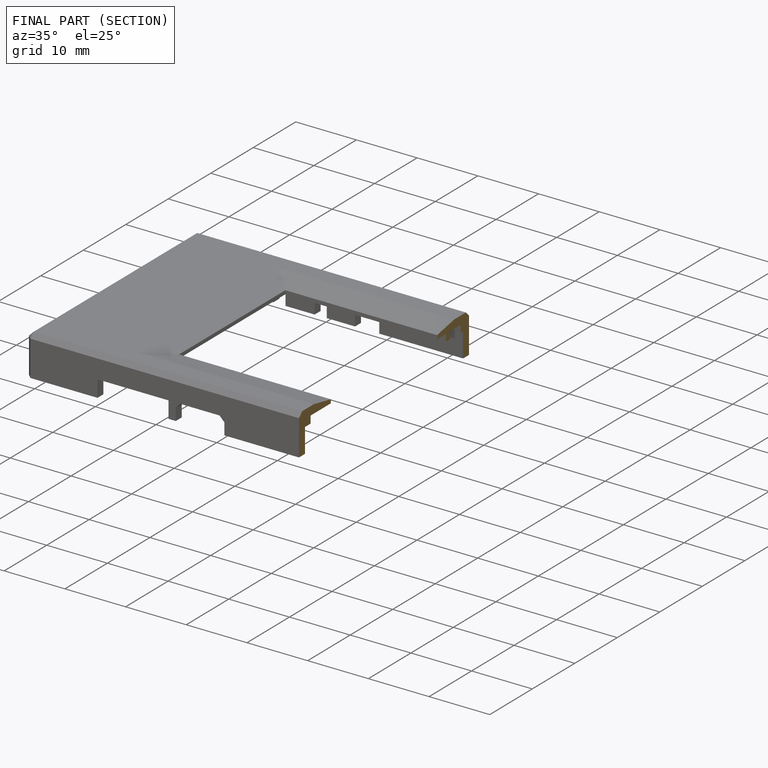
[diagram: finished part — half-section view (interior)]
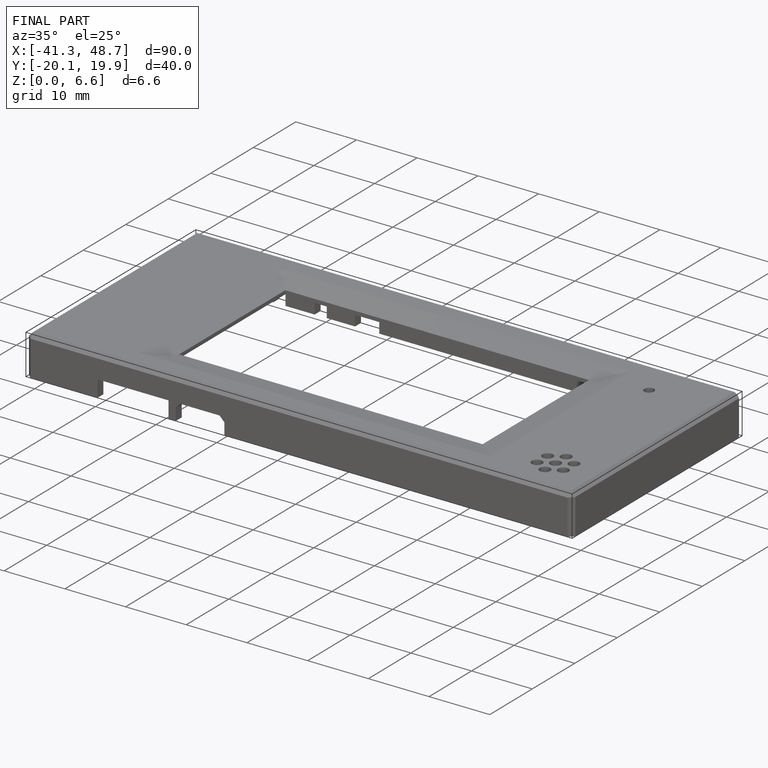
[diagram: finished part — iso view with bounding-box wireframe]
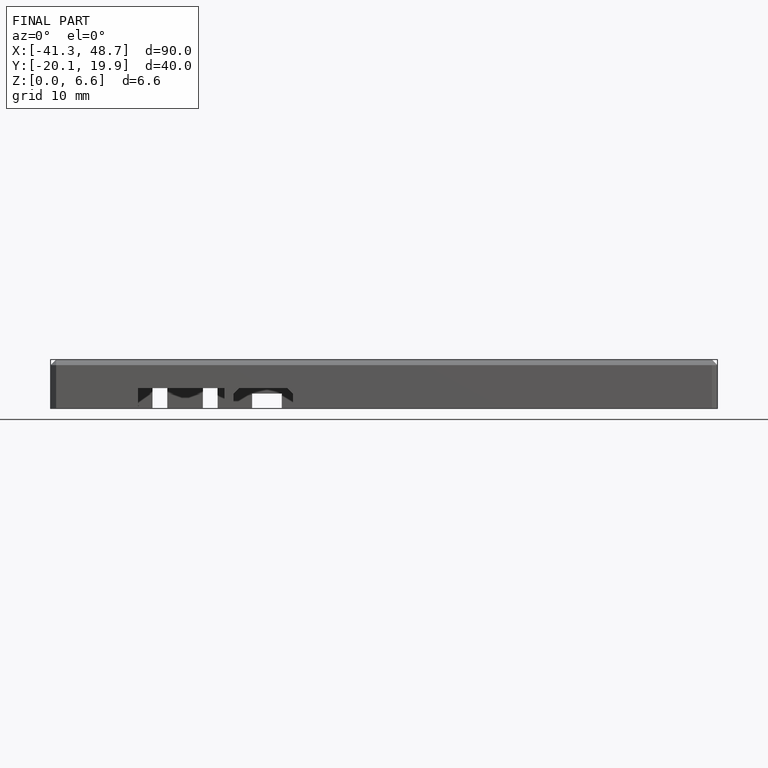
[diagram: finished part — front view with bounding-box wireframe]
